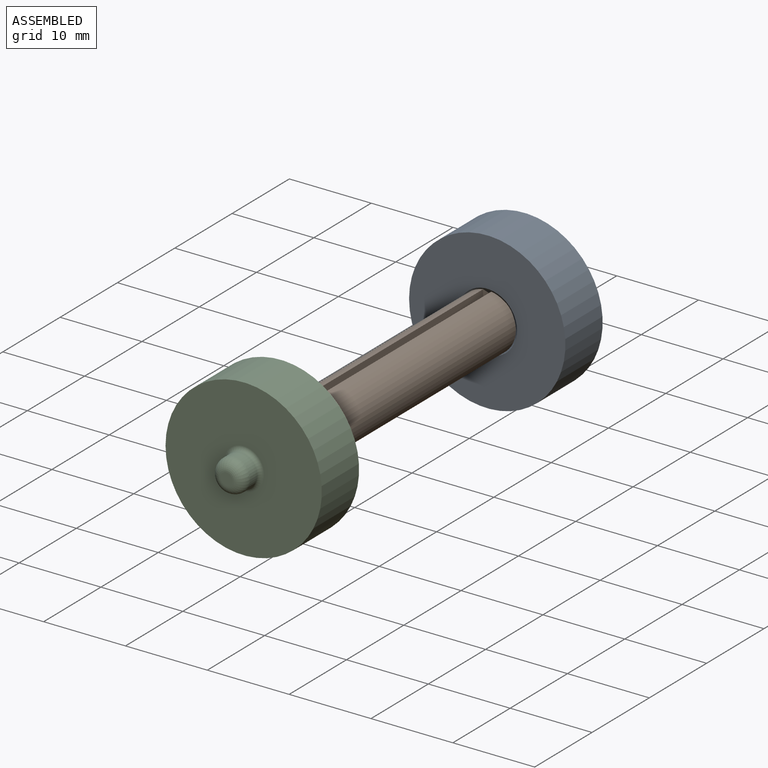
[diagram: assembled view]
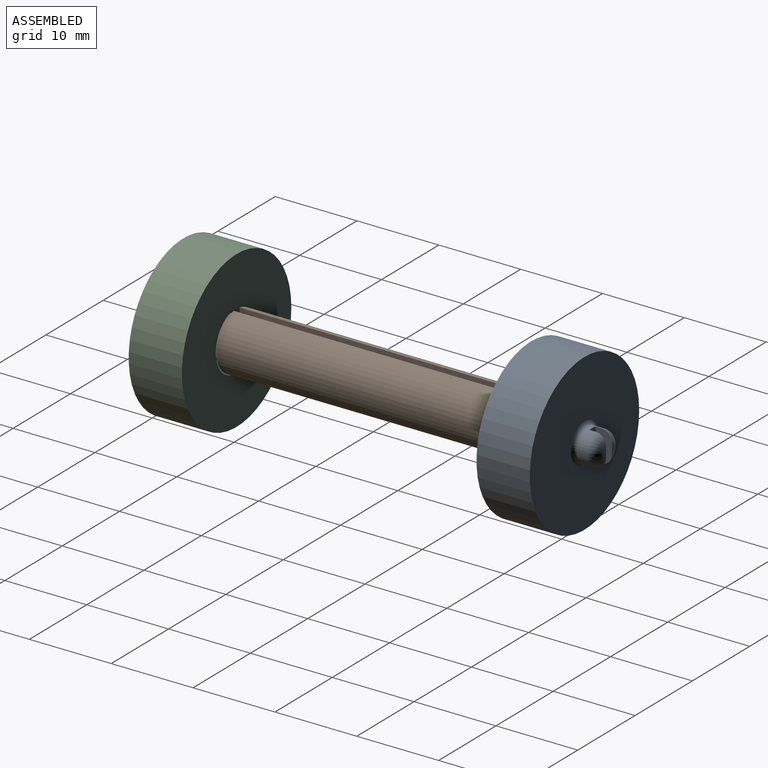
[diagram: assembled view, second angle]
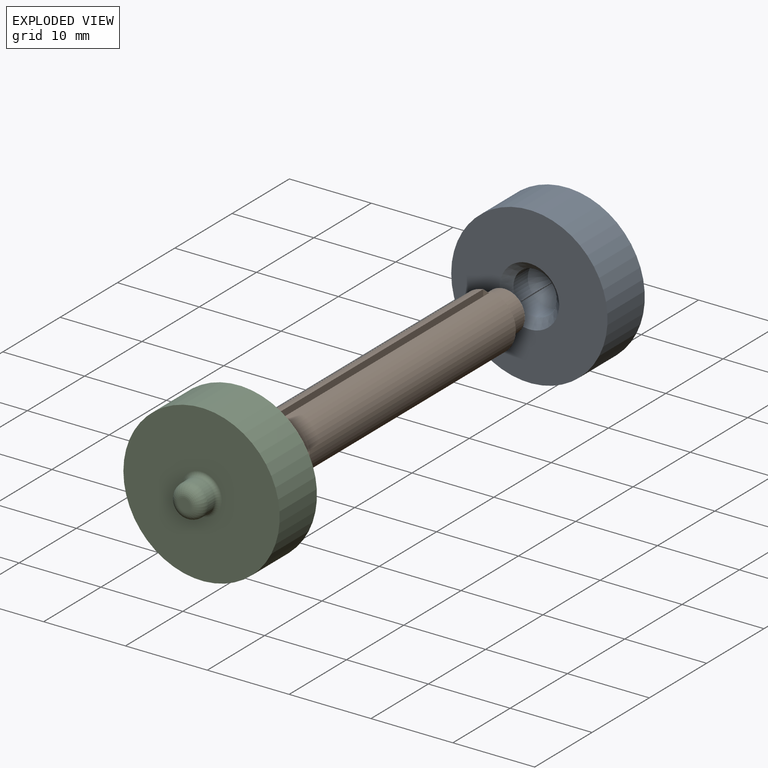
[diagram: exploded view]
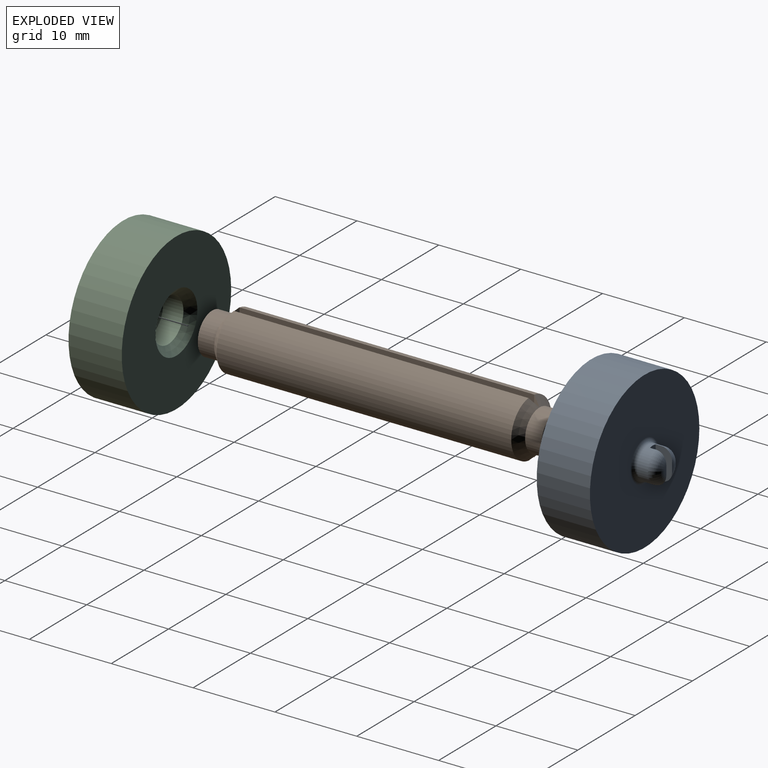
[diagram: exploded view, second angle]
ASSEMBLY  parts=3 mates=2
PART A: 16 faces, bbox 19.1x19.1x9.5 mm
  f0: plane 1.12x0.25mm, normal (0,0,1), area 0.2mm2, adj f1,f14
  f1: torus R=0.75mm, axis (0,0,-1), area 7.5mm2, adj f0,f6,f14
  f2: plane 1.12x0.25mm, normal (0,0,1), area 0.2mm2, adj f7,f15
  f3: plane 19.1x19.1mm, normal (0,0,-1), area 244.7mm2, adj f4,f12
  f4: cylinder r=9.55mm len=19.1mm, axis (0,0,-1), area 390mm2, adj f3,f5
  f5: plane 19.1x19.1mm, normal (0,0,1), area 266.9mm2, adj f4,f8
  f6: cylinder r=2mm len=4mm, axis (0,0,-1), area 14.2mm2, adj f1,f7,f8,f13,f14,f15
  f7: torus R=0.75mm, axis (0,0,-1), area 7.5mm2, adj f2,f6,f15
  f8: torus R=2.5mm, axis (0,0,-1), area 10.8mm2, adj f5,f6
  f9: cylinder r=2.65mm len=5.3mm, axis (0,0,-1), area 41.6mm2, adj f11,f12
  f10: plane 1.3x1.3mm, normal (0,0,-1), area 1.3mm2, adj f11
  f11: cone r=0.65mm half-angle=45deg, axis (0,0,-1), area 29.3mm2, adj f9,f10
  f12: cone r=2.65mm half-angle=45deg, axis (0,0,-1), area 28mm2, adj f3,f9
  f13: plane 4x1mm, normal (0,0,1), area 4mm2, adj f6,f14,f15
  f14: plane 3.88x2mm, normal (1,0,0), area 7mm2, adj f0,f1,f6,f13
  f15: plane 3.88x2mm, normal (-1,0,0), area 7mm2, adj f2,f6,f7,f13
PART B: 16 faces, bbox 7.1x42.1x7.1 mm
  f0: cylinder r=3.5mm len=36mm, axis (0,1,0), area 359.7mm2, adj f2,f9,f11
  f1: cone r=3.5mm half-angle=45deg, axis (0,-1,0), area 12.7mm2, adj f4,f5,f12
  f2: cone r=3.5mm half-angle=45deg, axis (0,-1,0), area 12.7mm2, adj f0,f5,f15
  f3: cone r=2.5mm half-angle=45deg, axis (0,1,0), area 12.7mm2, adj f4,f7,f13
  f4: cylinder r=3.5mm len=36mm, axis (0,1,0), area 359.7mm2, adj f1,f3,f10
  f5: cylinder r=2.5mm len=5mm, axis (0,-1,0), area 31.4mm2, adj f1,f2,f6
  f6: plane 5x5mm, normal (0,1,0), area 19.6mm2, adj f5
  f7: cylinder r=2.5mm len=5mm, axis (0,1,0), area 31.4mm2, adj f3,f8,f9
  f8: plane 5x5mm, normal (0,-1,0), area 19.6mm2, adj f7
  f9: cone r=2.5mm half-angle=45deg, axis (0,1,0), area 12.7mm2, adj f0,f7,f14
  f10: plane 36x6.93mm, normal (1,0,0), area 249.4mm2, adj f4,f12,f13
  f11: plane 36x6.93mm, normal (-1,0,0), area 249.4mm2, adj f0,f14,f15
  f12: plane 7x1.07mm, normal (0.89,-0.45,0), area 6.7mm2, adj f1,f10,f15
  f13: plane 7x1.07mm, normal (0.89,0.45,0), area 6.7mm2, adj f3,f10,f14
  f14: plane 7x1.07mm, normal (-0.89,0.45,0), area 6.7mm2, adj f9,f11,f13
  f15: plane 7x1.07mm, normal (-0.89,-0.45,0), area 6.7mm2, adj f2,f11,f12
PART C: 11 faces, bbox 19.1x19.1x9.5 mm
  f0: plane 1.5x1.5mm, normal (0,0,1), area 1.8mm2, adj f5
  f1: plane 19.1x19.1mm, normal (0,0,-1), area 244.7mm2, adj f2,f10
  f2: cylinder r=9.55mm len=19.1mm, axis (0,0,-1), area 390mm2, adj f1,f3
  f3: plane 19.1x19.1mm, normal (0,0,1), area 266.9mm2, adj f2,f6
  f4: cylinder r=2mm len=4mm, axis (0,0,-1), area 15.7mm2, adj f5,f6
  f5: torus R=0.75mm, axis (0,0,-1), area 19.1mm2, adj f0,f4
  f6: torus R=2.5mm, axis (0,0,-1), area 10.8mm2, adj f3,f4
  f7: cylinder r=2.65mm len=5.3mm, axis (0,0,-1), area 41.6mm2, adj f9,f10
  f8: plane 1.3x1.3mm, normal (0,0,-1), area 1.3mm2, adj f9
  f9: cone r=0.65mm half-angle=45deg, axis (0,0,-1), area 29.3mm2, adj f7,f8
  f10: cone r=2.65mm half-angle=45deg, axis (0,0,-1), area 28mm2, adj f1,f7
PLACE A rot(axis=(-1,0,0),90deg) t=(-11.49,5.27,-7.46)mm
PLACE B t=(-11.49,6.27,-7.46)mm fixed
PLACE C rot(axis=(1,0,0),90deg) t=(-11.49,-30.73,-7.46)mm
MATE fastened B.f5 <-> A.f9  axis (0,1,0) through (-11.49,6.27,-7.46)mm
MATE fastened C.f7 <-> B.f7  axis (0,-1,0) through (-11.49,-31.73,-7.46)mm
